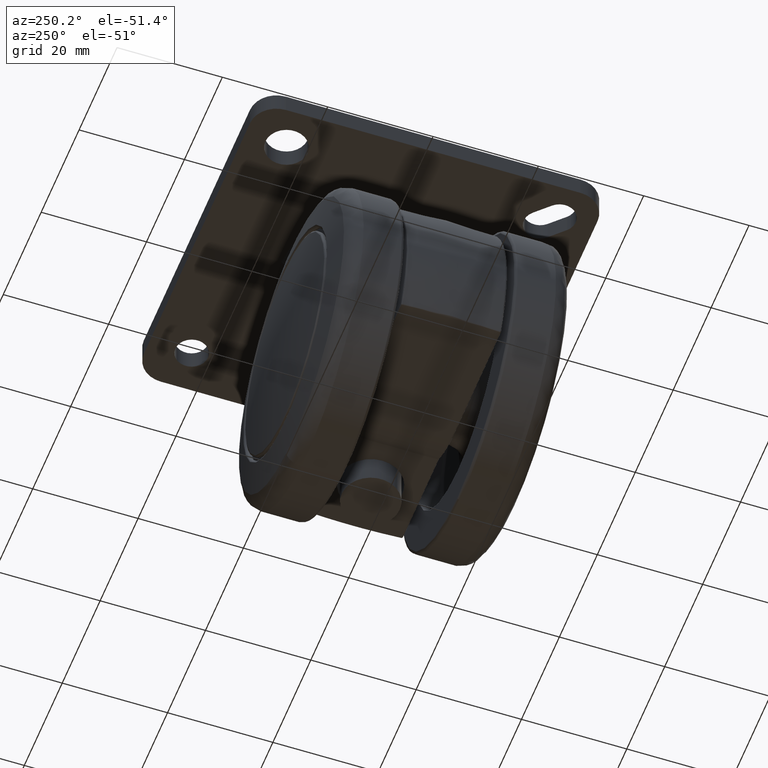
[diagram: clean part render]
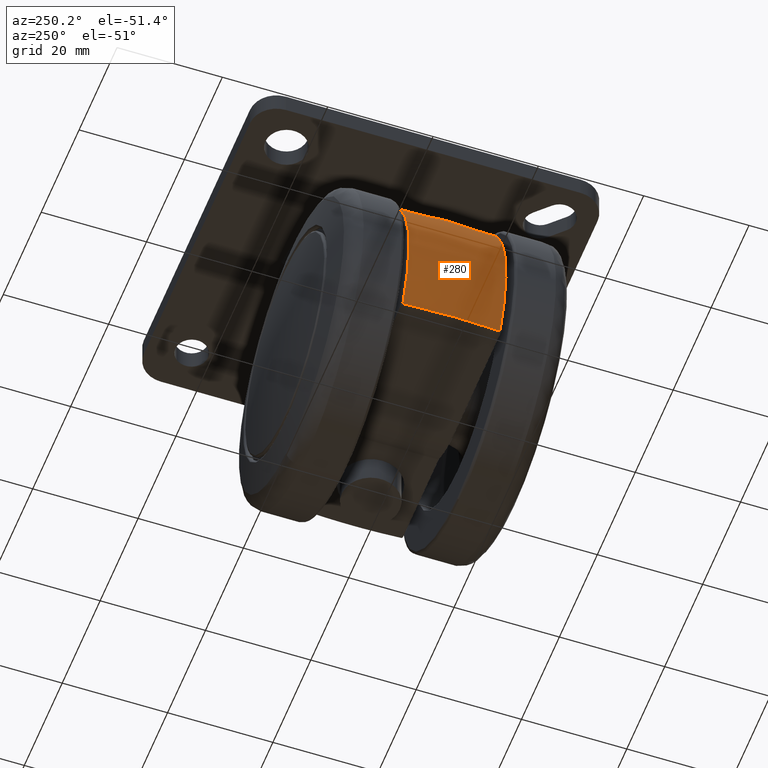
[diagram: same view with one face highlighted and labeled with its STEP entity id]
A machine part, auxiliary view. The second image highlights one B-rep face of the part: STEP entity #280.
In plain terms, the highlighted face is a freeform B-spline surface patch.
Its self-contained STEP definition (entity closure, byte-faithful):
#280=ADVANCED_FACE('',(#1566),#1565,.T.);
#1565=( BOUNDED_SURFACE() B_SPLINE_SURFACE( 2,2,((#5473,#5474,#5475,#5476,#5477),(#5478,#5479,#5480,#5481,#5482),(#5483,#5484,#5485,#5486,#5487)), .UNSPECIFIED.,.F.,.F.,.F.) B_SPLINE_SURFACE_WITH_KNOTS((3,3),(3,2,3),(-6.15003419044E-02,6.15009049175E-02),(2.00183160381E+00,3.14159265359E+00,4.29974327563E+00), .UNSPECIFIED. ) GEOMETRIC_REPRESENTATION_ITEM() RATIONAL_B_SPLINE_SURFACE(((8.83365727422E-01,7.87478314755E-01,1.00000000000E+00,7.84049365425E-01,8.86540221317E-01),(8.81695665035E-01,7.85989533979E-01,9.98109432668E-01,7.82567067308E-01,8.84864157336E-01),(8.83365727422E-01,7.87478314755E-01,1.00000000000E+00,7.84049365425E-01,8.86540221317E-01))) REPRESENTATION_ITEM('') SURFACE() );
#1566=FACE_OUTER_BOUND('',#5488,.T.);
#5473=CARTESIAN_POINT('',(-2.55483621127E+01,9.21923707895E+00,-1.31140783001E+01));
#5474=CARTESIAN_POINT('',(-3.40926939272E+01,9.21923707895E+00,3.53167279376E+00));
#5475=CARTESIAN_POINT('',(-2.23177304180E+01,9.21923707895E+00,1.80725417496E+01));
#5476=CARTESIAN_POINT('',(-1.03004554351E+01,9.21923707895E+00,3.29126404552E+01));
#5477=CARTESIAN_POINT('',(8.03290968362E+00,9.21923707895E+00,2.75711845650E+01));
#5478=CARTESIAN_POINT('',(-2.60534165176E+01,-4.23059716845E-05,-1.33733247826E+01));
#5479=CARTESIAN_POINT('',(-3.47666574935E+01,-4.23059717044E-05,3.60148888973E+00));
#5480=CARTESIAN_POINT('',(-2.27589198768E+01,-4.23059716989E-05,1.84298099290E+01));
#5481=CARTESIAN_POINT('',(-1.05040806369E+01,-4.23059716932E-05,3.35632760602E+01));
#5482=CARTESIAN_POINT('',(8.19170876444E+00,-4.23059716682E-05,2.81162272629E+01));
#5483=CARTESIAN_POINT('',(-2.55483574949E+01,-9.21932137127E+00,-1.31140759298E+01));
#5484=CARTESIAN_POINT('',(-3.40926877651E+01,-9.21932137127E+00,3.53167215542E+00));
#5485=CARTESIAN_POINT('',(-2.23177263841E+01,-9.21932137127E+00,1.80725384831E+01));
#5486=CARTESIAN_POINT('',(-1.03004535734E+01,-9.21932137127E+00,3.29126345064E+01));
#5487=CARTESIAN_POINT('',(8.03290823171E+00,-9.21932137127E+00,2.75711795816E+01));
#5488=EDGE_LOOP('',(#6642,#6643,#6644,#6645,#6646,#6647));
#6642=ORIENTED_EDGE('',*,*,#7018,.T.);
#6643=ORIENTED_EDGE('',*,*,#7091,.T.);
#6644=ORIENTED_EDGE('',*,*,#7066,.T.);
#6645=ORIENTED_EDGE('',*,*,#7025,.T.);
#6646=ORIENTED_EDGE('',*,*,#7012,.T.);
#6647=ORIENTED_EDGE('',*,*,#7015,.T.);
#7012=EDGE_CURVE('',#8487,#8508,#8515,.T.);
#7015=EDGE_CURVE('',#8508,#8528,#8535,.T.);
#7018=EDGE_CURVE('',#8528,#8548,#8555,.T.);
#7025=EDGE_CURVE('',#8581,#8487,#8601,.T.);
#7066=EDGE_CURVE('',#8832,#8581,#8870,.T.);
#7091=EDGE_CURVE('',#8548,#8832,#9036,.T.);
#8487=VERTEX_POINT('',#10382);
#8508=VERTEX_POINT('',#10481);
#8515=(BOUNDED_CURVE() B_SPLINE_CURVE(3,(#10486,#10487,#10488,#10489,#10490,#10491,#10492,#10493,#10494,#10495,#10496,#10497,#10498,#10499,#10500,#10501,#10502,#10503,#10504),.UNSPECIFIED.,.F.,.F.) B_SPLINE_CURVE_WITH_KNOTS((4,2,2,2,1,2,2,2,1,1,4),(0.00000000000E+00,2.50000000000E-01,2.81250000000E-01,3.12500000000E-01,3.75000000000E-01,5.00000000000E-01,5.62500000000E-01,5.93750000000E-01,6.25000000000E-01,7.50000000000E-01,1.00000000000E+00),.UNSPECIFIED.) CURVE() GEOMETRIC_REPRESENTATION_ITEM() RATIONAL_B_SPLINE_CURVE((1.00000000000E+00,1.00000000000E+00,1.00000000000E+00,1.00000000000E+00,1.00000000000E+00,1.00000000000E+00,1.00000000000E+00,1.00000000000E+00,1.00000000000E+00,1.00000000000E+00,1.00000000000E+00,1.00000000000E+00,1.00000000000E+00,1.00000000000E+00,1.00000000000E+00,1.00000000000E+00,1.00000000000E+00,1.00000000000E+00,1.00000000000E+00)) REPRESENTATION_ITEM('') );
#8528=VERTEX_POINT('',#10527);
#8535=(BOUNDED_CURVE() B_SPLINE_CURVE(3,(#10538,#10539,#10540,#10541,#10542,#10543,#10544,#10545,#10546,#10547,#10548,#10549,#10550,#10551,#10552,#10553,#10554,#10555,#10556,#10557,#10558,#10559,#10560,#10561,#10562,#10563,#10564,#10565,#10566,#10567,#10568,#10569,#10570,#10571,#10572,#10573,#10574,#10575,#10576,#10577,#10578,#10579,#10580,#10581,#10582),.UNSPECIFIED.,.F.,.F.) B_SPLINE_CURVE_WITH_KNOTS((4,2,1,2,2,2,1,2,2,2,2,2,2,1,2,2,2,2,2,2,1,1,2,2,4),(0.00000000000E+00,6.25000000000E-02,9.37500000000E-02,1.09375000000E-01,1.25000000000E-01,1.87500000000E-01,2.18750000000E-01,2.34375000000E-01,2.50000000000E-01,3.75000000000E-01,4.37500000000E-01,5.00000000000E-01,5.62500000000E-01,5.93750000000E-01,6.09375000000E-01,6.25000000000E-01,6.87500000000E-01,7.18750000000E-01,7.50000000000E-01,8.12500000000E-01,8.43750000000E-01,8.59375000000E-01,8.67187500000E-01,8.75000000000E-01,1.00000000000E+00),.UNSPECIFIED.) CURVE() GEOMETRIC_REPRESENTATION_ITEM() RATIONAL_B_SPLINE_CURVE((1.00000000000E+00,1.00000000000E+00,1.00000000000E+00,1.00000000000E+00,1.00000000000E+00,1.00000000000E+00,1.00000000000E+00,1.00000000000E+00,1.00000000000E+00,1.00000000000E+00,1.00000000000E+00,1.00000000000E+00,1.00000000000E+00,1.00000000000E+00,1.00000000000E+00,1.00000000000E+00,1.00000000000E+00,1.00000000000E+00,1.00000000000E+00,1.00000000000E+00,1.00000000000E+00,1.00000000000E+00,1.00000000000E+00,1.00000000000E+00,1.00000000000E+00,1.00000000000E+00,1.00000000000E+00,1.00000000000E+00,1.00000000000E+00,1.00000000000E+00,1.00000000000E+00,1.00000000000E+00,1.00000000000E+00,1.00000000000E+00,1.00000000000E+00,1.00000000000E+00,1.00000000000E+00,1.00000000000E+00,1.00000000000E+00,1.00000000000E+00,1.00000000000E+00,1.00000000000E+00,1.00000000000E+00,1.00000000000E+00,1.00000000000E+00)) REPRESENTATION_ITEM('') );
#8548=VERTEX_POINT('',#10594);
#8555=(BOUNDED_CURVE() B_SPLINE_CURVE(3,(#10599,#10600,#10601,#10602,#10603,#10604,#10605,#10606,#10607,#10608,#10609,#10610,#10611,#10612,#10613,#10614,#10615,#10616,#10617),.UNSPECIFIED.,.F.,.F.) B_SPLINE_CURVE_WITH_KNOTS((4,1,1,1,1,2,2,1,1,1,2,2,4),(0.00000000000E+00,2.50000000000E-01,3.75000000000E-01,4.37500000000E-01,4.68750000000E-01,4.84375000000E-01,5.00000000000E-01,6.25000000000E-01,6.87500000000E-01,7.18750000000E-01,7.34375000000E-01,7.50000000000E-01,1.00000000000E+00),.UNSPECIFIED.) CURVE() GEOMETRIC_REPRESENTATION_ITEM() RATIONAL_B_SPLINE_CURVE((1.00000000000E+00,1.00000000000E+00,1.00000000000E+00,1.00000000000E+00,1.00000000000E+00,1.00000000000E+00,1.00000000000E+00,1.00000000000E+00,1.00000000000E+00,1.00000000000E+00,1.00000000000E+00,1.00000000000E+00,1.00000000000E+00,1.00000000000E+00,1.00000000000E+00,1.00000000000E+00,1.00000000000E+00,1.00000000000E+00,1.00000000000E+00)) REPRESENTATION_ITEM('') );
#8581=VERTEX_POINT('',#10734);
#8601=CIRCLE('',#10751,2.87176023772E+01);
#8832=VERTEX_POINT('',#10925);
#8870=(BOUNDED_CURVE() B_SPLINE_CURVE(3,(#10949,#10950,#10951,#10952,#10953,#10954),.UNSPECIFIED.,.F.,.F.) B_SPLINE_CURVE_WITH_KNOTS((4,2,4),(0.00000000000E+00,9.22276417416E-03,1.84455283483E-02),.UNSPECIFIED.) CURVE() GEOMETRIC_REPRESENTATION_ITEM() RATIONAL_B_SPLINE_CURVE((1.00000000000E+00,1.00000000000E+00,1.00000000000E+00,1.00000000000E+00,1.00000000000E+00,1.00000000000E+00)) REPRESENTATION_ITEM('') );
#9036=CIRCLE('',#11068,2.87176023772E+01);
#10382=CARTESIAN_POINT('',(8.02617483888E+00,-9.21843687375E+00,2.75731971986E+01));
#10481=CARTESIAN_POINT('',(6.45647329748E+00,-7.51725010168E+00,2.80799395565E+01));
#10486=CARTESIAN_POINT('',(8.02617483888E+00,-9.21843687375E+00,2.75731971986E+01));
#10487=CARTESIAN_POINT('',(7.86853263634E+00,-9.10326162137E+00,2.76264706316E+01));
#10488=CARTESIAN_POINT('',(7.72051704409E+00,-8.98105891537E+00,2.76757564028E+01));
#10489=CARTESIAN_POINT('',(7.56500327172E+00,-8.83567190153E+00,2.77272022482E+01));
#10490=CARTESIAN_POINT('',(7.54787675693E+00,-8.81940794195E+00,2.77328628014E+01));
#10491=CARTESIAN_POINT('',(7.51392985570E+00,-8.78666031804E+00,2.77440741397E+01));
#10492=CARTESIAN_POINT('',(7.50121332953E+00,-8.77417609366E+00,2.77482716470E+01));
#10493=CARTESIAN_POINT('',(7.45740766533E+00,-8.73064027486E+00,2.77627263407E+01));
#10494=CARTESIAN_POINT('',(7.36695884334E+00,-8.63828465119E+00,2.77925418690E+01));
#10495=CARTESIAN_POINT('',(7.26795654239E+00,-8.53007547028E+00,2.78249685807E+01));
#10496=CARTESIAN_POINT('',(7.16319181746E+00,-8.41129474870E+00,2.78589713337E+01));
#10497=CARTESIAN_POINT('',(7.12730977978E+00,-8.36993924737E+00,2.78705680158E+01));
#10498=CARTESIAN_POINT('',(7.07203803507E+00,-8.30526275774E+00,2.78883338732E+01));
#10499=CARTESIAN_POINT('',(7.05662034248E+00,-8.28708393549E+00,2.78932754508E+01));
#10500=CARTESIAN_POINT('',(7.02527676104E+00,-8.24992895949E+00,2.79033014646E+01));
#10501=CARTESIAN_POINT('',(6.94717898306E+00,-8.15677806783E+00,2.79282251945E+01));
#10502=CARTESIAN_POINT('',(6.74752677118E+00,-7.91116075250E+00,2.79912043806E+01));
#10503=CARTESIAN_POINT('',(6.57082769433E+00,-7.67684828883E+00,2.80454279020E+01));
#10504=CARTESIAN_POINT('',(6.45647329748E+00,-7.51725010168E+00,2.80799395565E+01));
#10527=CARTESIAN_POINT('',(6.45640144002E+00,7.51710249779E+00,2.80799629651E+01));
#10538=CARTESIAN_POINT('',(6.45647329748E+00,-7.51725010168E+00,2.80799395565E+01));
#10539=CARTESIAN_POINT('',(6.26927992983E+00,-7.25603272712E+00,2.81364300899E+01));
#10540=CARTESIAN_POINT('',(6.09187560625E+00,-6.98471207585E+00,2.81884613021E+01));
#10541=CARTESIAN_POINT('',(5.84076547751E+00,-6.56254606173E+00,2.82604443307E+01));
#10542=CARTESIAN_POINT('',(5.71895875281E+00,-6.34766682284E+00,2.82949181209E+01));
#10543=CARTESIAN_POINT('',(5.60282077054E+00,-6.12709244920E+00,2.83272176565E+01));
#10544=CARTESIAN_POINT('',(5.52665988814E+00,-5.97877721593E+00,2.83482777474E+01));
#10545=CARTESIAN_POINT('',(5.48850997595E+00,-5.90254912126E+00,2.83587631724E+01));
#10546=CARTESIAN_POINT('',(5.30795017977E+00,-5.53262089027E+00,2.84081149103E+01));
#10547=CARTESIAN_POINT('',(5.17465698103E+00,-5.22972889375E+00,2.84436627018E+01));
#10548=CARTESIAN_POINT('',(4.99167478430E+00,-4.76496836514E+00,2.84916210009E+01));
#10549=CARTESIAN_POINT('',(4.90442230012E+00,-4.52998249789E+00,2.85142572981E+01));
#10550=CARTESIAN_POINT('',(4.82356320442E+00,-4.29108881605E+00,2.85349617061E+01));
#10551=CARTESIAN_POINT('',(4.77108138106E+00,-4.13095804541E+00,2.85483432126E+01));
#10552=CARTESIAN_POINT('',(4.74508071832E+00,-4.04891943296E+00,2.85549425996E+01));
#10553=CARTESIAN_POINT('',(4.52599312548E+00,-3.33436814324E+00,2.86103274208E+01));
#10554=CARTESIAN_POINT('',(4.37842431377E+00,-2.68202715286E+00,2.86461347842E+01));
#10555=CARTESIAN_POINT('',(4.22959247267E+00,-1.68297616920E+00,2.86819261729E+01));
#10556=CARTESIAN_POINT('',(4.19233674921E+00,-1.34860993968E+00,2.86907825753E+01));
#10557=CARTESIAN_POINT('',(4.14262383006E+00,-6.77193424323E-01,2.87025836665E+01));
#10558=CARTESIAN_POINT('',(4.13016629479E+00,-3.37907247049E-01,2.87055284540E+01));
#10559=CARTESIAN_POINT('',(4.13007531235E+00,3.34390467487E-01,2.87055495067E+01));
#10560=CARTESIAN_POINT('',(4.14228657606E+00,6.69267265947E-01,2.87026631636E+01));
#10561=CARTESIAN_POINT('',(4.17897075245E+00,1.16966323726E+00,2.86939559866E+01));
#10562=CARTESIAN_POINT('',(4.20190393177E+00,1.41938142435E+00,2.86885057721E+01));
#10563=CARTESIAN_POINT('',(4.23171377522E+00,1.66837789718E+00,2.86813845964E+01));
#10564=CARTESIAN_POINT('',(4.25311358093E+00,1.83421494566E+00,2.86762615541E+01));
#10565=CARTESIAN_POINT('',(4.26439839234E+00,1.91584554359E+00,2.86735551899E+01));
#10566=CARTESIAN_POINT('',(4.32641868300E+00,2.33567274877E+00,2.86586439938E+01));
#10567=CARTESIAN_POINT('',(4.38819861215E+00,2.66752015683E+00,2.86436869420E+01));
#10568=CARTESIAN_POINT('',(4.49901260898E+00,3.15926075795E+00,2.86164734260E+01));
#10569=CARTESIAN_POINT('',(4.53897413169E+00,3.32216922262E+00,2.86066044550E+01));
#10570=CARTESIAN_POINT('',(4.62492127467E+00,3.64597470600E+00,2.85852139998E+01));
#10571=CARTESIAN_POINT('',(4.67053514178E+00,3.80565825742E+00,2.85737864841E+01));
#10572=CARTESIAN_POINT('',(4.81860276026E+00,4.28897076632E+00,2.85363584948E+01));
#10573=CARTESIAN_POINT('',(4.92864137996E+00,4.60432395618E+00,2.85081320781E+01));
#10574=CARTESIAN_POINT('',(5.11051430184E+00,5.06706734041E+00,2.84604788652E+01));
#10575=CARTESIAN_POINT('',(5.20565380960E+00,5.29586746715E+00,2.84353218447E+01));
#10576=CARTESIAN_POINT('',(5.32395921299E+00,5.55830025245E+00,2.84035347091E+01));
#10577=CARTESIAN_POINT('',(5.37622236685E+00,5.66980698315E+00,2.83893763578E+01));
#10578=CARTESIAN_POINT('',(5.41141070262E+00,5.74393047587E+00,2.83798170209E+01));
#10579=CARTESIAN_POINT('',(5.42863561829E+00,5.77977107594E+00,2.83751253021E+01));
#10580=CARTESIAN_POINT('',(5.74283736912E+00,6.42511487372E+00,2.82892919078E+01));
#10581=CARTESIAN_POINT('',(6.07973228664E+00,6.99156327401E+00,2.81936282635E+01));
#10582=CARTESIAN_POINT('',(6.45640144002E+00,7.51710249779E+00,2.80799629651E+01));
#10594=CARTESIAN_POINT('',(8.03292346977E+00,9.21843687375E+00,2.75712318699E+01));
#10599=CARTESIAN_POINT('',(6.45640144002E+00,7.51710249779E+00,2.80799629651E+01));
#10600=CARTESIAN_POINT('',(6.57152415694E+00,7.67773247809E+00,2.80452226479E+01));
#10601=CARTESIAN_POINT('',(6.74932779040E+00,7.91346578428E+00,2.79906525239E+01));
#10602=CARTESIAN_POINT('',(6.96559922909E+00,8.17936996213E+00,2.79224106276E+01));
#10603=CARTESIAN_POINT('',(7.07592636700E+00,8.31004288480E+00,2.78871088223E+01));
#10604=CARTESIAN_POINT('',(7.13163561544E+00,8.37480959738E+00,2.78691580516E+01));
#10605=CARTESIAN_POINT('',(7.15562770168E+00,8.40244467557E+00,2.78614001006E+01));
#10606=CARTESIAN_POINT('',(7.17164833125E+00,8.42084093170E+00,2.78562136847E+01));
#10607=CARTESIAN_POINT('',(7.17884656872E+00,8.42908396266E+00,2.78538809681E+01));
#10608=CARTESIAN_POINT('',(7.25859770028E+00,8.52009674571E+00,2.78280023627E+01));
#10609=CARTESIAN_POINT('',(7.36197316617E+00,8.63291553884E+00,2.77942097318E+01));
#10610=CARTESIAN_POINT('',(7.47746331696E+00,8.74961081553E+00,2.77562075241E+01));
#10611=CARTESIAN_POINT('',(7.53393750640E+00,8.80422719973E+00,2.77375821623E+01));
#10612=CARTESIAN_POINT('',(7.55786921745E+00,8.82683470936E+00,2.77296824909E+01));
#10613=CARTESIAN_POINT('',(7.57376344542E+00,8.84172871764E+00,2.77244346340E+01));
#10614=CARTESIAN_POINT('',(7.58080051289E+00,8.84827586677E+00,2.77221106597E+01));
#10615=CARTESIAN_POINT('',(7.72983672996E+00,8.98564205835E+00,2.76728806579E+01));
#10616=CARTESIAN_POINT('',(7.87766143823E+00,9.10633448295E+00,2.76236571937E+01));
#10617=CARTESIAN_POINT('',(8.03292346977E+00,9.21843687375E+00,2.75712318699E+01));
#10734=CARTESIAN_POINT('',(-2.55625803707E+01,-9.21843687375E+00,-1.30864499039E+01));
#10748=CARTESIAN_POINT('',(0.00000000000E+00,-9.21843687375E+00,0.00000000000E+00));
#10749=DIRECTION('',(0.00000000000E+00,1.00000000000E+00,-0.00000000000E+00));
#10750=DIRECTION('',(8.90136301594E-01,0.00000000000E+00,4.55694376292E-01));
#10751=AXIS2_PLACEMENT_3D('',#10748,#10749,#10750);
#10925=CARTESIAN_POINT('',(-2.55625803707E+01,9.21843687375E+00,-1.30864499039E+01));
#10949=CARTESIAN_POINT('',(-2.55625803707E+01,9.21843687375E+00,-1.30864499039E+01));
#10950=CARTESIAN_POINT('',(-2.57752270465E+01,6.14969684872E+00,-1.30857166799E+01));
#10951=CARTESIAN_POINT('',(-2.58812248768E+01,3.07727004066E+00,-1.30853605898E+01));
#10952=CARTESIAN_POINT('',(-2.58812791963E+01,-3.07491024894E+00,-1.30853604056E+01));
#10953=CARTESIAN_POINT('',(-2.57752267437E+01,-6.14970121901E+00,-1.30857166809E+01));
#10954=CARTESIAN_POINT('',(-2.55625803707E+01,-9.21843687375E+00,-1.30864499039E+01));
#11065=CARTESIAN_POINT('',(0.00000000000E+00,9.21843687375E+00,0.00000000000E+00));
#11066=DIRECTION('',(0.00000000000E+00,-1.00000000000E+00,0.00000000000E+00));
#11067=DIRECTION('',(1.00000000000E+00,-0.00000000000E+00,-0.00000000000E+00));
#11068=AXIS2_PLACEMENT_3D('',#11065,#11066,#11067);